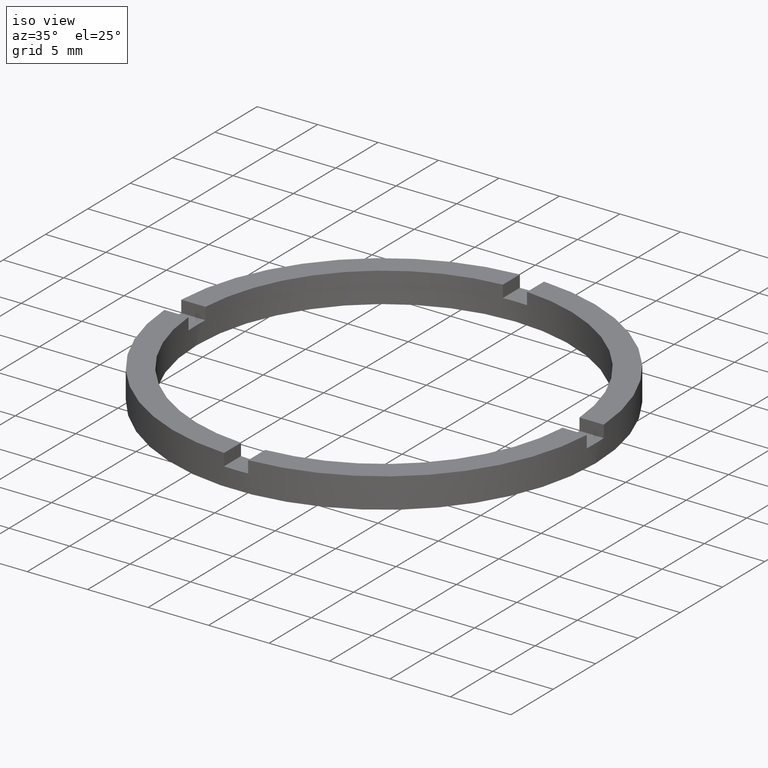
[diagram: clean part render]
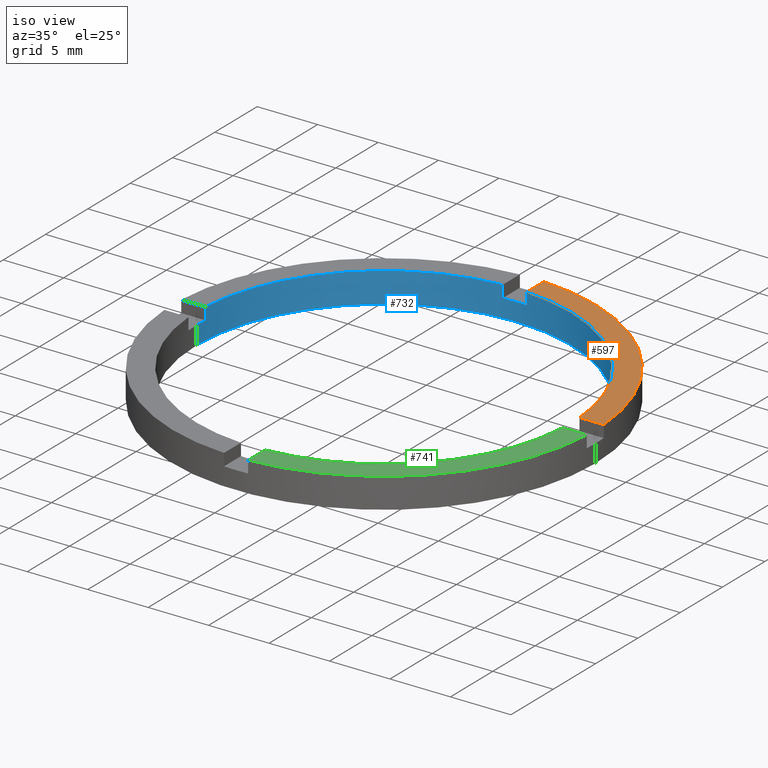
[diagram: same view with three faces highlighted in distinct colors, each labeled with its STEP entity id]
A machine part, iso view with three faces highlighted in distinct colors.
Their STEP definitions:

[orange] entity #597 — the highlighted planar face has unit normal (0, 0, 1).
#17 = CARTESIAN_POINT ( 'NONE',  ( 17.47140520965616162, 0.9999999999998411271, 2.500000000000000000 ) ) ;
#31 = AXIS2_PLACEMENT_3D ( 'NONE', #316, #311, #778 ) ;
#37 = FACE_OUTER_BOUND ( 'NONE', #498, .T. ) ;
#103 = EDGE_CURVE ( 'NONE', #472, #490, #165, .T. ) ;
#104 = CIRCLE ( 'NONE', #565, 15.50000000000000000 ) ;
#110 = ORIENTED_EDGE ( 'NONE', *, *, #194, .F. ) ;
#165 = CIRCLE ( 'NONE', #31, 17.50000000000000355 ) ;
#188 = VECTOR ( 'NONE', #378, 1000.000000000000000 ) ;
#194 = EDGE_CURVE ( 'NONE', #472, #263, #444, .T. ) ;
#252 = CARTESIAN_POINT ( 'NONE',  ( 15.46770829825802984, 0.9999999999998411271, 2.500000000000000000 ) ) ;
#263 = VERTEX_POINT ( 'NONE', #252 ) ;
#311 = DIRECTION ( 'NONE',  ( 0.000000000000000000, 0.000000000000000000, 1.000000000000000000 ) ) ;
#316 = CARTESIAN_POINT ( 'NONE',  ( 0.000000000000000000, 0.000000000000000000, 2.500000000000000000 ) ) ;
#327 = EDGE_CURVE ( 'NONE', #263, #513, #104, .T. ) ;
#329 = CARTESIAN_POINT ( 'NONE',  ( 0.000000000000000000, 0.000000000000000000, 2.500000000000000000 ) ) ;
#330 = CARTESIAN_POINT ( 'NONE',  ( 0.9999999999999744649, 17.47140520965614741, 2.500000000000000000 ) ) ;
#342 = CARTESIAN_POINT ( 'NONE',  ( 0.9999999999999749090, 7.500000000000005329, 2.500000000000000000 ) ) ;
#378 = DIRECTION ( 'NONE',  ( -1.000000000000000000, -4.336808689942017120E-17, -0.000000000000000000 ) ) ;
#380 = LINE ( 'NONE', #342, #663 ) ;
#411 = DIRECTION ( 'NONE',  ( 0.000000000000000000, 1.000000000000000000, 0.000000000000000000 ) ) ;
#444 = LINE ( 'NONE', #470, #188 ) ;
#468 = DIRECTION ( 'NONE',  ( 1.000000000000000000, 0.000000000000000000, 0.000000000000000000 ) ) ;
#470 = CARTESIAN_POINT ( 'NONE',  ( 7.500000000000000000, 0.9999999999998406830, 2.500000000000000000 ) ) ;
#472 = VERTEX_POINT ( 'NONE', #17 ) ;
#490 = VERTEX_POINT ( 'NONE', #330 ) ;
#498 = EDGE_LOOP ( 'NONE', ( #667, #729, #110, #713 ) ) ;
#513 = VERTEX_POINT ( 'NONE', #776 ) ;
#540 = CARTESIAN_POINT ( 'NONE',  ( 0.000000000000000000, 0.000000000000000000, 2.500000000000000000 ) ) ;
#558 = AXIS2_PLACEMENT_3D ( 'NONE', #540, #768, #636 ) ;
#565 = AXIS2_PLACEMENT_3D ( 'NONE', #329, #761, #468 ) ;
#597 = ADVANCED_FACE ( 'NONE', ( #37 ), #687, .T. ) ;
#636 = DIRECTION ( 'NONE',  ( 1.000000000000000000, 0.000000000000000000, -0.000000000000000000 ) ) ;
#663 = VECTOR ( 'NONE', #411, 1000.000000000000000 ) ;
#667 = ORIENTED_EDGE ( 'NONE', *, *, #720, .F. ) ;
#687 = PLANE ( 'NONE',  #558 ) ;
#713 = ORIENTED_EDGE ( 'NONE', *, *, #103, .T. ) ;
#720 = EDGE_CURVE ( 'NONE', #513, #490, #380, .T. ) ;
#729 = ORIENTED_EDGE ( 'NONE', *, *, #327, .F. ) ;
#761 = DIRECTION ( 'NONE',  ( 0.000000000000000000, 0.000000000000000000, 1.000000000000000000 ) ) ;
#768 = DIRECTION ( 'NONE',  ( 0.000000000000000000, 0.000000000000000000, 1.000000000000000000 ) ) ;
#776 = CARTESIAN_POINT ( 'NONE',  ( 0.9999999999999744649, 15.46770829825801918, 2.500000000000000000 ) ) ;
#778 = DIRECTION ( 'NONE',  ( 1.000000000000000000, 0.000000000000000000, 0.000000000000000000 ) ) ;

[blue] entity #732 — the highlighted cylindrical surface (partial cylindrical patch) has radius 15.5 mm, axis along (-0, -0, -1).
#1 = VERTEX_POINT ( 'NONE', #518 ) ;
#5 = DIRECTION ( 'NONE',  ( -0.000000000000000000, -0.000000000000000000, -1.000000000000000000 ) ) ;
#14 = CARTESIAN_POINT ( 'NONE',  ( -15.50000000000000000, 0.000000000000000000, 0.000000000000000000 ) ) ;
#15 = EDGE_CURVE ( 'NONE', #533, #513, #684, .T. ) ;
#33 = CARTESIAN_POINT ( 'NONE',  ( -1.000000000000025091, 15.46770829825801741, 2.500000000000000000 ) ) ;
#36 = CARTESIAN_POINT ( 'NONE',  ( 15.46770829825802984, 0.9999999999998411271, 2.500000000000000000 ) ) ;
#40 = DIRECTION ( 'NONE',  ( 1.000000000000000000, 0.000000000000000000, 0.000000000000000000 ) ) ;
#43 = CARTESIAN_POINT ( 'NONE',  ( -1.000000000000024647, 15.46770829825801563, 2.500000000000000000 ) ) ;
#63 = EDGE_CURVE ( 'NONE', #674, #146, #680, .T. ) ;
#75 = AXIS2_PLACEMENT_3D ( 'NONE', #163, #236, #587 ) ;
#86 = DIRECTION ( 'NONE',  ( 1.000000000000000000, 0.000000000000000000, 0.000000000000000000 ) ) ;
#91 = CARTESIAN_POINT ( 'NONE',  ( 0.000000000000000000, 0.000000000000000000, 2.500000000000000000 ) ) ;
#104 = CIRCLE ( 'NONE', #565, 15.50000000000000000 ) ;
#106 = LINE ( 'NONE', #334, #635 ) ;
#121 = CIRCLE ( 'NONE', #267, 15.50000000000000000 ) ;
#139 = CARTESIAN_POINT ( 'NONE',  ( 0.9999999999999744649, 15.46770829825801918, 1.500000000000000000 ) ) ;
#142 = VERTEX_POINT ( 'NONE', #660 ) ;
#146 = VERTEX_POINT ( 'NONE', #14 ) ;
#153 = ORIENTED_EDGE ( 'NONE', *, *, #303, .F. ) ;
#155 = VECTOR ( 'NONE', #5, 1000.000000000000000 ) ;
#159 = EDGE_CURVE ( 'NONE', #184, #475, #417, .T. ) ;
#163 = CARTESIAN_POINT ( 'NONE',  ( 0.000000000000000000, 0.000000000000000000, 2.500000000000000000 ) ) ;
#179 = ORIENTED_EDGE ( 'NONE', *, *, #63, .T. ) ;
#182 = AXIS2_PLACEMENT_3D ( 'NONE', #644, #446, #506 ) ;
#184 = VERTEX_POINT ( 'NONE', #43 ) ;
#187 = ORIENTED_EDGE ( 'NONE', *, *, #392, .T. ) ;
#203 = ORIENTED_EDGE ( 'NONE', *, *, #716, .T. ) ;
#209 = ORIENTED_EDGE ( 'NONE', *, *, #277, .F. ) ;
#212 = CARTESIAN_POINT ( 'NONE',  ( -1.000000000000024647, 15.46770829825801563, 1.500000000000000000 ) ) ;
#222 = CARTESIAN_POINT ( 'NONE',  ( 0.9999999999999749090, 15.46770829825802096, 2.500000000000000000 ) ) ;
#224 = DIRECTION ( 'NONE',  ( -0.000000000000000000, -0.000000000000000000, -1.000000000000000000 ) ) ;
#236 = DIRECTION ( 'NONE',  ( -0.000000000000000000, -0.000000000000000000, -1.000000000000000000 ) ) ;
#237 = ORIENTED_EDGE ( 'NONE', *, *, #15, .F. ) ;
#238 = DIRECTION ( 'NONE',  ( 0.000000000000000000, 0.000000000000000000, 1.000000000000000000 ) ) ;
#241 = ORIENTED_EDGE ( 'NONE', *, *, #159, .F. ) ;
#252 = CARTESIAN_POINT ( 'NONE',  ( 15.46770829825802984, 0.9999999999998411271, 2.500000000000000000 ) ) ;
#263 = VERTEX_POINT ( 'NONE', #252 ) ;
#267 = AXIS2_PLACEMENT_3D ( 'NONE', #571, #772, #40 ) ;
#277 = EDGE_CURVE ( 'NONE', #405, #146, #390, .T. ) ;
#286 = AXIS2_PLACEMENT_3D ( 'NONE', #91, #238, #309 ) ;
#289 = CIRCLE ( 'NONE', #182, 15.50000000000000000 ) ;
#293 = VECTOR ( 'NONE', #224, 1000.000000000000000 ) ;
#301 = LINE ( 'NONE', #624, #305 ) ;
#302 = CARTESIAN_POINT ( 'NONE',  ( 0.000000000000000000, 0.000000000000000000, 0.000000000000000000 ) ) ;
#303 = EDGE_CURVE ( 'NONE', #737, #142, #106, .T. ) ;
#305 = VECTOR ( 'NONE', #374, 1000.000000000000000 ) ;
#309 = DIRECTION ( 'NONE',  ( 1.000000000000000000, 0.000000000000000000, 0.000000000000000000 ) ) ;
#327 = EDGE_CURVE ( 'NONE', #263, #513, #104, .T. ) ;
#329 = CARTESIAN_POINT ( 'NONE',  ( 0.000000000000000000, 0.000000000000000000, 2.500000000000000000 ) ) ;
#334 = CARTESIAN_POINT ( 'NONE',  ( -15.46770829825802096, 0.9999999999999767963, 2.500000000000000000 ) ) ;
#337 = CARTESIAN_POINT ( 'NONE',  ( 0.000000000000000000, 0.000000000000000000, 1.500000000000000000 ) ) ;
#369 = CARTESIAN_POINT ( 'NONE',  ( 15.50000000000000000, 1.898202538678397557E-15, 0.000000000000000000 ) ) ;
#374 = DIRECTION ( 'NONE',  ( -0.000000000000000000, -0.000000000000000000, -1.000000000000000000 ) ) ;
#381 = CIRCLE ( 'NONE', #652, 15.50000000000000000 ) ;
#390 = CIRCLE ( 'NONE', #590, 15.50000000000000000 ) ;
#392 = EDGE_CURVE ( 'NONE', #737, #674, #289, .T. ) ;
#398 = DIRECTION ( 'NONE',  ( 0.000000000000000000, -0.000000000000000000, 1.000000000000000000 ) ) ;
#400 = CYLINDRICAL_SURFACE ( 'NONE', #75, 15.50000000000000000 ) ;
#405 = VERTEX_POINT ( 'NONE', #369 ) ;
#414 = DIRECTION ( 'NONE',  ( -0.000000000000000000, -0.000000000000000000, -1.000000000000000000 ) ) ;
#417 = LINE ( 'NONE', #33, #670 ) ;
#424 = VERTEX_POINT ( 'NONE', #671 ) ;
#446 = DIRECTION ( 'NONE',  ( 0.000000000000000000, 0.000000000000000000, 1.000000000000000000 ) ) ;
#453 = ORIENTED_EDGE ( 'NONE', *, *, #764, .T. ) ;
#461 = DIRECTION ( 'NONE',  ( 0.000000000000000000, 0.000000000000000000, 1.000000000000000000 ) ) ;
#463 = VECTOR ( 'NONE', #461, 1000.000000000000000 ) ;
#468 = DIRECTION ( 'NONE',  ( 1.000000000000000000, 0.000000000000000000, 0.000000000000000000 ) ) ;
#475 = VERTEX_POINT ( 'NONE', #212 ) ;
#480 = DIRECTION ( 'NONE',  ( 0.000000000000000000, 0.000000000000000000, 1.000000000000000000 ) ) ;
#483 = CARTESIAN_POINT ( 'NONE',  ( -15.46770829825802096, 0.9999999999999767963, 1.500000000000000000 ) ) ;
#506 = DIRECTION ( 'NONE',  ( 1.000000000000000000, 0.000000000000000000, 0.000000000000000000 ) ) ;
#513 = VERTEX_POINT ( 'NONE', #776 ) ;
#518 = CARTESIAN_POINT ( 'NONE',  ( 15.46770829825802984, 0.9999999999998411271, 1.500000000000000000 ) ) ;
#533 = VERTEX_POINT ( 'NONE', #139 ) ;
#543 = CARTESIAN_POINT ( 'NONE',  ( -15.50000000000000000, 0.000000000000000000, 1.500000000000000000 ) ) ;
#549 = LINE ( 'NONE', #36, #293 ) ;
#565 = AXIS2_PLACEMENT_3D ( 'NONE', #329, #761, #468 ) ;
#571 = CARTESIAN_POINT ( 'NONE',  ( 0.000000000000000000, 0.000000000000000000, 1.500000000000000000 ) ) ;
#587 = DIRECTION ( 'NONE',  ( -1.000000000000000000, 0.000000000000000000, 0.000000000000000000 ) ) ;
#590 = AXIS2_PLACEMENT_3D ( 'NONE', #302, #480, #86 ) ;
#592 = EDGE_CURVE ( 'NONE', #263, #1, #549, .T. ) ;
#594 = CARTESIAN_POINT ( 'NONE',  ( -15.50000000000000000, 0.000000000000000000, 2.500000000000000000 ) ) ;
#624 = CARTESIAN_POINT ( 'NONE',  ( 15.50000000000000000, 1.898202538678397557E-15, 2.500000000000000000 ) ) ;
#630 = EDGE_CURVE ( 'NONE', #424, #405, #301, .T. ) ;
#635 = VECTOR ( 'NONE', #756, 1000.000000000000000 ) ;
#644 = CARTESIAN_POINT ( 'NONE',  ( 0.000000000000000000, 0.000000000000000000, 1.500000000000000000 ) ) ;
#648 = CIRCLE ( 'NONE', #286, 15.50000000000000000 ) ;
#652 = AXIS2_PLACEMENT_3D ( 'NONE', #337, #398, #682 ) ;
#660 = CARTESIAN_POINT ( 'NONE',  ( -15.46770829825802096, 0.9999999999999767963, 2.500000000000000000 ) ) ;
#666 = FACE_OUTER_BOUND ( 'NONE', #751, .T. ) ;
#670 = VECTOR ( 'NONE', #414, 1000.000000000000000 ) ;
#671 = CARTESIAN_POINT ( 'NONE',  ( 15.50000000000000000, 1.898202538678397557E-15, 1.500000000000000000 ) ) ;
#674 = VERTEX_POINT ( 'NONE', #543 ) ;
#680 = LINE ( 'NONE', #594, #155 ) ;
#682 = DIRECTION ( 'NONE',  ( 1.000000000000000000, 0.000000000000000000, 0.000000000000000000 ) ) ;
#684 = LINE ( 'NONE', #222, #463 ) ;
#708 = ORIENTED_EDGE ( 'NONE', *, *, #767, .T. ) ;
#716 = EDGE_CURVE ( 'NONE', #184, #142, #648, .T. ) ;
#727 = ORIENTED_EDGE ( 'NONE', *, *, #327, .T. ) ;
#732 = ADVANCED_FACE ( 'NONE', ( #666 ), #400, .F. ) ;
#737 = VERTEX_POINT ( 'NONE', #483 ) ;
#751 = EDGE_LOOP ( 'NONE', ( #753, #708, #757, #727, #237, #453, #241, #203, #153, #187, #179, #209 ) ) ;
#753 = ORIENTED_EDGE ( 'NONE', *, *, #630, .F. ) ;
#756 = DIRECTION ( 'NONE',  ( 0.000000000000000000, 0.000000000000000000, 1.000000000000000000 ) ) ;
#757 = ORIENTED_EDGE ( 'NONE', *, *, #592, .F. ) ;
#761 = DIRECTION ( 'NONE',  ( 0.000000000000000000, 0.000000000000000000, 1.000000000000000000 ) ) ;
#764 = EDGE_CURVE ( 'NONE', #533, #475, #381, .T. ) ;
#767 = EDGE_CURVE ( 'NONE', #424, #1, #121, .T. ) ;
#772 = DIRECTION ( 'NONE',  ( 0.000000000000000000, 0.000000000000000000, 1.000000000000000000 ) ) ;
#776 = CARTESIAN_POINT ( 'NONE',  ( 0.9999999999999744649, 15.46770829825801918, 2.500000000000000000 ) ) ;

[green] entity #741 — the highlighted planar face has unit normal (0, 0, 1).
#8 = VERTEX_POINT ( 'NONE', #39 ) ;
#39 = CARTESIAN_POINT ( 'NONE',  ( 0.9999999999998366862, -15.46770829825802807, 2.500000000000000000 ) ) ;
#47 = CARTESIAN_POINT ( 'NONE',  ( 0.000000000000000000, 0.000000000000000000, 2.500000000000000000 ) ) ;
#84 = DIRECTION ( 'NONE',  ( 1.000000000000000000, 0.000000000000000000, -0.000000000000000000 ) ) ;
#119 = ORIENTED_EDGE ( 'NONE', *, *, #206, .T. ) ;
#124 = CARTESIAN_POINT ( 'NONE',  ( 17.47140520965614385, -1.000000000000158984, 2.500000000000000000 ) ) ;
#125 = FACE_OUTER_BOUND ( 'NONE', #215, .T. ) ;
#126 = EDGE_CURVE ( 'NONE', #8, #432, #415, .T. ) ;
#132 = ORIENTED_EDGE ( 'NONE', *, *, #126, .F. ) ;
#133 = CARTESIAN_POINT ( 'NONE',  ( 7.500000000000000000, -1.000000000000159428, 2.500000000000000000 ) ) ;
#154 = PLANE ( 'NONE',  #697 ) ;
#206 = EDGE_CURVE ( 'NONE', #517, #529, #698, .T. ) ;
#215 = EDGE_LOOP ( 'NONE', ( #484, #132, #504, #119 ) ) ;
#274 = DIRECTION ( 'NONE',  ( 1.000000000000000000, 4.336808689942017120E-17, 0.000000000000000000 ) ) ;
#291 = VECTOR ( 'NONE', #331, 1000.000000000000000 ) ;
#314 = LINE ( 'NONE', #573, #291 ) ;
#323 = AXIS2_PLACEMENT_3D ( 'NONE', #474, #460, #620 ) ;
#331 = DIRECTION ( 'NONE',  ( -1.301042606982605074E-16, 1.000000000000000000, -0.000000000000000000 ) ) ;
#341 = CARTESIAN_POINT ( 'NONE',  ( 0.000000000000000000, 0.000000000000000000, 2.500000000000000000 ) ) ;
#415 = CIRCLE ( 'NONE', #744, 15.50000000000000000 ) ;
#432 = VERTEX_POINT ( 'NONE', #562 ) ;
#460 = DIRECTION ( 'NONE',  ( 0.000000000000000000, 0.000000000000000000, 1.000000000000000000 ) ) ;
#474 = CARTESIAN_POINT ( 'NONE',  ( 0.000000000000000000, 0.000000000000000000, 2.500000000000000000 ) ) ;
#484 = ORIENTED_EDGE ( 'NONE', *, *, #576, .F. ) ;
#496 = DIRECTION ( 'NONE',  ( 1.000000000000000000, 0.000000000000000000, 0.000000000000000000 ) ) ;
#504 = ORIENTED_EDGE ( 'NONE', *, *, #589, .F. ) ;
#517 = VERTEX_POINT ( 'NONE', #694 ) ;
#529 = VERTEX_POINT ( 'NONE', #124 ) ;
#541 = DIRECTION ( 'NONE',  ( 0.000000000000000000, 0.000000000000000000, 1.000000000000000000 ) ) ;
#548 = VECTOR ( 'NONE', #274, 1000.000000000000000 ) ;
#557 = LINE ( 'NONE', #133, #548 ) ;
#562 = CARTESIAN_POINT ( 'NONE',  ( 15.46770829825800853, -1.000000000000158984, 2.500000000000000000 ) ) ;
#573 = CARTESIAN_POINT ( 'NONE',  ( 0.9999999999998363531, -7.500000000000185629, 2.500000000000000000 ) ) ;
#576 = EDGE_CURVE ( 'NONE', #432, #529, #557, .T. ) ;
#589 = EDGE_CURVE ( 'NONE', #517, #8, #314, .T. ) ;
#620 = DIRECTION ( 'NONE',  ( 1.000000000000000000, 0.000000000000000000, 0.000000000000000000 ) ) ;
#694 = CARTESIAN_POINT ( 'NONE',  ( 0.9999999999998369082, -17.47140520965615806, 2.500000000000000000 ) ) ;
#697 = AXIS2_PLACEMENT_3D ( 'NONE', #341, #781, #84 ) ;
#698 = CIRCLE ( 'NONE', #323, 17.50000000000000355 ) ;
#741 = ADVANCED_FACE ( 'NONE', ( #125 ), #154, .T. ) ;
#744 = AXIS2_PLACEMENT_3D ( 'NONE', #47, #541, #496 ) ;
#781 = DIRECTION ( 'NONE',  ( 0.000000000000000000, 0.000000000000000000, 1.000000000000000000 ) ) ;